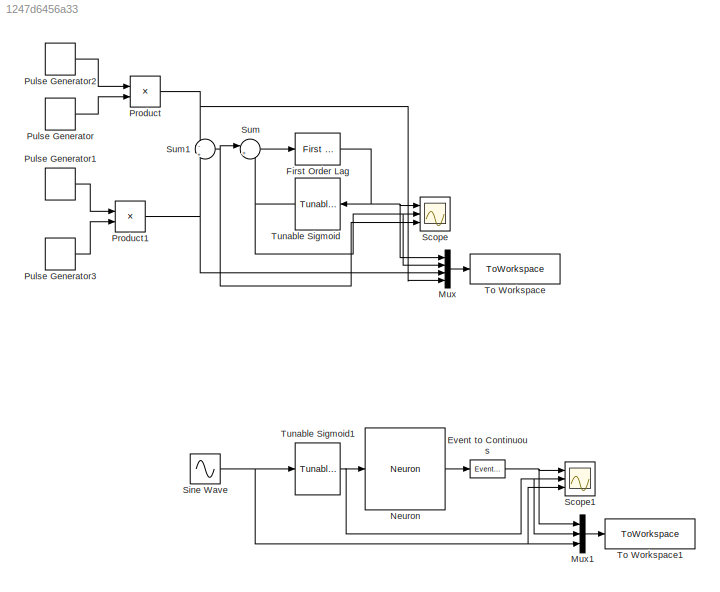
MODEL slx_1247d6456a33
KIND model
CONFIG AbsTol = auto
CONFIG EnableMultiTasking = off
CONFIG FixedStep = auto
CONFIG MaxStep = auto
CONFIG MinStep = auto
CONFIG RelTol = 1e-3
CONFIG SampleTimeConstraint = Unconstrained
CONFIG SolverName = VariableStepAuto
CONFIG StartTime = 0.0
CONFIG StopTime = 10.0
BLOCK [Reference] Event to Continuous  REF=neuromorphic_blocks/Events Transmission Blocks/Event to Continuous  (lib defined in slx_48105648e755)
  Ports = [1, 1]
  SourceBlock = neuromorphic_blocks/Events Transmission Blocks/Event to Continuous
  SourceProductName = Neuromorphic Toolbox
  SourceType = Event to Continuous
BLOCK [Reference] First Order Lag  REF=neuromorphic_blocks/First Order Lag  (lib defined in slx_48105648e755)
  Ports = [1, 1]
  SourceBlock = neuromorphic_blocks/First Order Lag
  SourceProductName = Neuromorphic Toolbox
  SourceType = First Order Lag
BLOCK [Mux] Mux
  DisplayOption = bar
  Ports = [4, 1]
BLOCK [Mux] Mux1
  DisplayOption = bar
  Inputs = 3
  Ports = [3, 1]
BLOCK [Reference] Neuron  REF=neuromorphic_blocks/Neural Blocks/Neuron  (lib defined in slx_48105648e755)
  Ports = [1, 1]
  SourceBlock = neuromorphic_blocks/Neural Blocks/Neuron
  SourceProductName = Neuromorphic Toolbox
  SourceType = Neuron
BLOCK [Product] Product
  Ports = [2, 1]
BLOCK [Product] Product1
  Ports = [2, 1]
BLOCK [DiscretePulseGenerator] Pulse Generator
  Amplitude = 10
  Period = 0.5
  PhaseDelay = 0.25
  Ports = [0, 1]
  PulseType = Time based
  PulseWidth = 2
BLOCK [DiscretePulseGenerator] Pulse Generator1
  Amplitude = 10
  Period = 0.5
  Ports = [0, 1]
  PulseType = Time based
  PulseWidth = 2
BLOCK [DiscretePulseGenerator] Pulse Generator2
  Period = 5
  PhaseDelay = -2.5
  Ports = [0, 1]
  PulseType = Time based
  PulseWidth = 90
BLOCK [DiscretePulseGenerator] Pulse Generator3
  Period = 5
  PhaseDelay = 2
  Ports = [0, 1]
  PulseType = Time based
  PulseWidth = 75
BLOCK [Scope] Scope
  Floating = off
  NumInputPorts = 3
  Ports = [3]
  ScopeSpecificationString = Simulink.scopes.TimeScopeBlockCfg('CurrentConfiguration', extmgr.ConfigurationSet(extmgr.Configuration('Core','General UI',true),extmgr.Configuration('Core','Source UI',true),extmgr.Configuration('Sources','WiredSimulink',true),extmgr.Configuration('Visuals','Time Domain',true,'SerializedDisplays',{struct('MinYLimReal','-17.72227','MaxYLimReal','17.72328','YLabelReal','','MinYLimMag','0.00000','Ma...<+2783ch>
BLOCK [Scope] Scope1
  Floating = off
  NumInputPorts = 3
  Ports = [3]
  ScopeSpecificationString = Simulink.scopes.TimeScopeBlockCfg('CurrentConfiguration', extmgr.ConfigurationSet(extmgr.Configuration('Core','General UI',true),extmgr.Configuration('Core','Source UI',true),extmgr.Configuration('Sources','WiredSimulink',true,'DataLoggingVariableName','ScopeData1'),extmgr.Configuration('Visuals','Time Domain',true,'SerializedDisplays',{struct('MinYLimReal','-5.16542','MaxYLimReal','5.685','YLabel...<+2850ch>
BLOCK [Sin] Sine Wave
  Amplitude = 5
  Frequency = 20
  Ports = [0, 1]
  SampleTime = 0
BLOCK [Sum] Sum
  Inputs = |++
  Ports = [2, 1]
BLOCK [Sum] Sum1
  Inputs = -|+
  Ports = [2, 1]
BLOCK [ToWorkspace] To Workspace
  FixptAsFi = on
  MaxDataPoints = inf
  Ports = [1]
  SampleTime = 0.001
  SaveFormat = Structure With Time
  VariableName = bistable
BLOCK [ToWorkspace] To Workspace1
  FixptAsFi = on
  MaxDataPoints = inf
  Ports = [1]
  SampleTime = 0.001
  SaveFormat = Structure With Time
  VariableName = rebound
BLOCK [Reference] Tunable Sigmoid  REF=neuromorphic_blocks/Tunable Sigmoid  (lib defined in slx_48105648e755)
  NameLocation = top
  Ports = [1, 1]
  SourceBlock = neuromorphic_blocks/Tunable Sigmoid
  SourceProductName = Neuromorphic Toolbox
  SourceType = Tunable Sigmoid
BLOCK [Reference] Tunable Sigmoid1  REF=neuromorphic_blocks/Tunable Sigmoid  (lib defined in slx_48105648e755)
  Ports = [1, 1]
  SourceBlock = neuromorphic_blocks/Tunable Sigmoid
  SourceProductName = Neuromorphic Toolbox
  SourceType = Tunable Sigmoid
NET Event to Continuous:1 -> Mux1:1, Scope1:1
NET First Order Lag:1 -> Mux:1, Scope:1, Tunable Sigmoid:1
LINE Mux1:1 -> To Workspace1:1
LINE Mux:1 -> To Workspace:1
LINE Neuron:1 -> Event to Continuous:1
NET Product1:1 -> Mux:3, Sum1:2
NET Product:1 -> Mux:4, Sum1:1
LINE Pulse Generator1:1 -> Product1:1
LINE Pulse Generator2:1 -> Product:1
LINE Pulse Generator3:1 -> Product1:2
LINE Pulse Generator:1 -> Product:2
NET Sine Wave:1 -> Mux1:3, Scope1:3, Tunable Sigmoid1:1
NET Sum1:1 -> Scope:3, Sum:1
LINE Sum:1 -> First Order Lag:1
NET Tunable Sigmoid1:1 -> Mux1:2, Neuron:1, Scope1:2
NET Tunable Sigmoid:1 -> Mux:2, Scope:2, Sum:2
note: NET lines group one-source signal fan-out (src -> all destinations, sorted); 1:1 wires keep LINE
